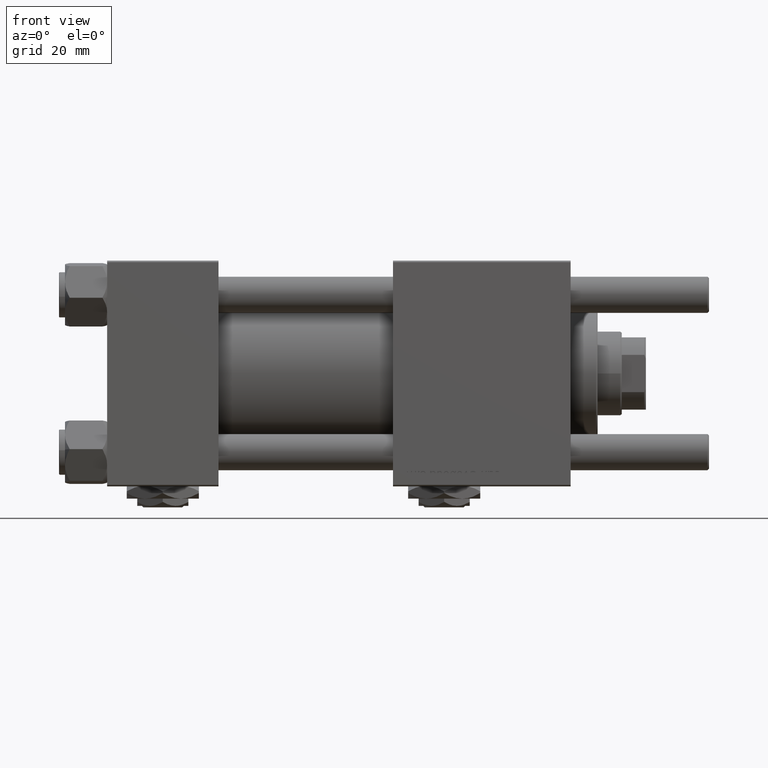
[diagram: clean part render]
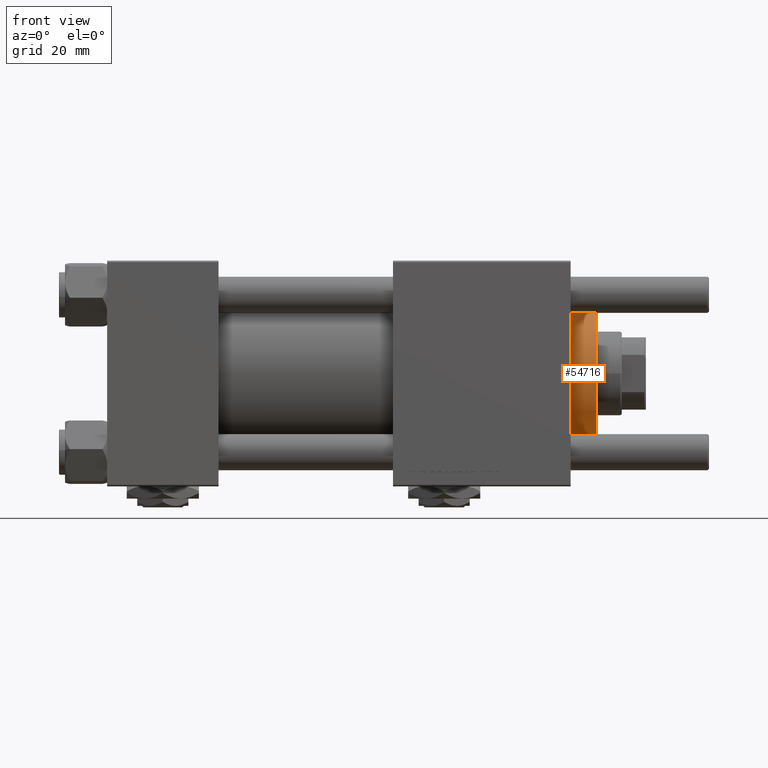
[diagram: same view with one face highlighted and labeled with its STEP entity id]
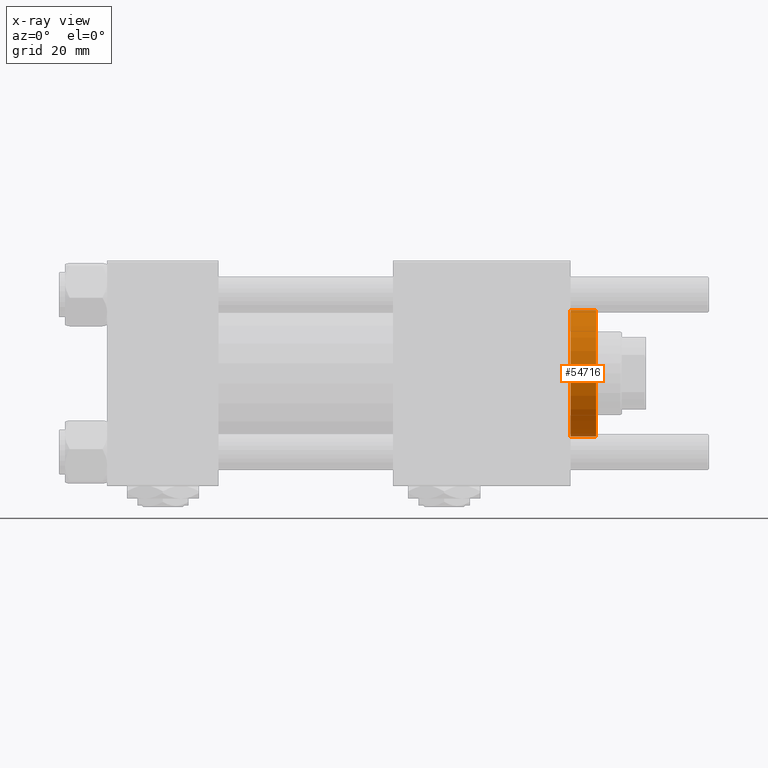
[diagram: x-ray of the same camera — body ghosted, the highlighted face saturated]
A machine part, front view. The second image highlights one B-rep face of the part: STEP entity #54716.
The next image is the same camera in x-ray: the body ghosted, the highlighted face saturated — about 2% of this face is hidden behind the body in this view.
In plain terms, the highlighted cylindrical surface (partial cylindrical patch) has radius 21 mm, axis along (-1, -0, 0).
Its self-contained STEP definition (entity closure, byte-faithful):
#752 = CARTESIAN_POINT ( 'NONE',  ( 0.000000000000000000, 0.000000000000000000, 28.69999999999999929 ) ) ;
#923 = ORIENTED_EDGE ( 'NONE', *, *, #51694, .T. ) ;
#1720 = EDGE_CURVE ( 'NONE', #11818, #10854, #43873, .T. ) ;
#1743 = DIRECTION ( 'NONE',  ( -0.000000000000000000, -0.000000000000000000, -1.000000000000000000 ) ) ;
#3553 = EDGE_LOOP ( 'NONE', ( #3613, #50491, #923, #40719 ) ) ;
#3613 = ORIENTED_EDGE ( 'NONE', *, *, #24667, .F. ) ;
#4584 = VECTOR ( 'NONE', #1743, 1000.000000000000000 ) ;
#4762 = CARTESIAN_POINT ( 'NONE',  ( 0.000000000000000000, 0.000000000000000000, 37.19999999999999574 ) ) ;
#7438 = DIRECTION ( 'NONE',  ( -0.000000000000000000, -0.000000000000000000, -1.000000000000000000 ) ) ;
#8427 = CARTESIAN_POINT ( 'NONE',  ( 21.00000000000000000, 2.571758278209441661E-15, 28.69999999999999929 ) ) ;
#10854 = VERTEX_POINT ( 'NONE', #8427 ) ;
#11818 = VERTEX_POINT ( 'NONE', #43141 ) ;
#14495 = AXIS2_PLACEMENT_3D ( 'NONE', #752, #32817, #27468 ) ;
#15616 = EDGE_CURVE ( 'NONE', #18017, #21276, #28030, .T. ) ;
#16622 = FACE_OUTER_BOUND ( 'NONE', #3553, .T. ) ;
#18017 = VERTEX_POINT ( 'NONE', #37291 ) ;
#19665 = AXIS2_PLACEMENT_3D ( 'NONE', #4762, #44045, #44332 ) ;
#20649 = CARTESIAN_POINT ( 'NONE',  ( -21.00000000000000000, 0.000000000000000000, 37.69999999999999574 ) ) ;
#21276 = VERTEX_POINT ( 'NONE', #52305 ) ;
#24667 = EDGE_CURVE ( 'NONE', #18017, #10854, #42435, .T. ) ;
#25537 = DIRECTION ( 'NONE',  ( -1.000000000000000000, 0.000000000000000000, 0.000000000000000000 ) ) ;
#27468 = DIRECTION ( 'NONE',  ( 1.000000000000000000, 0.000000000000000000, 0.000000000000000000 ) ) ;
#28030 = CIRCLE ( 'NONE', #19665, 21.00000000000000000 ) ;
#32817 = DIRECTION ( 'NONE',  ( 0.000000000000000000, 0.000000000000000000, 1.000000000000000000 ) ) ;
#33997 = VECTOR ( 'NONE', #38783, 1000.000000000000000 ) ;
#37092 = CARTESIAN_POINT ( 'NONE',  ( 21.00000000000000000, 2.571758278209441661E-15, 37.69999999999999574 ) ) ;
#37291 = CARTESIAN_POINT ( 'NONE',  ( 21.00000000000000000, 2.571758278209441661E-15, 37.19999999999999574 ) ) ;
#38783 = DIRECTION ( 'NONE',  ( -0.000000000000000000, -0.000000000000000000, -1.000000000000000000 ) ) ;
#39356 = LINE ( 'NONE', #20649, #33997 ) ;
#40719 = ORIENTED_EDGE ( 'NONE', *, *, #1720, .T. ) ;
#42435 = LINE ( 'NONE', #37092, #4584 ) ;
#43141 = CARTESIAN_POINT ( 'NONE',  ( -21.00000000000000000, 0.000000000000000000, 28.69999999999999929 ) ) ;
#43873 = CIRCLE ( 'NONE', #14495, 21.00000000000000000 ) ;
#44045 = DIRECTION ( 'NONE',  ( 0.000000000000000000, 0.000000000000000000, -1.000000000000000000 ) ) ;
#44332 = DIRECTION ( 'NONE',  ( 1.000000000000000000, 0.000000000000000000, 0.000000000000000000 ) ) ;
#46256 = AXIS2_PLACEMENT_3D ( 'NONE', #48106, #7438, #25537 ) ;
#48106 = CARTESIAN_POINT ( 'NONE',  ( 0.000000000000000000, 0.000000000000000000, 37.69999999999999574 ) ) ;
#50491 = ORIENTED_EDGE ( 'NONE', *, *, #15616, .T. ) ;
#51694 = EDGE_CURVE ( 'NONE', #21276, #11818, #39356, .T. ) ;
#51975 = CYLINDRICAL_SURFACE ( 'NONE', #46256, 21.00000000000000000 ) ;
#52305 = CARTESIAN_POINT ( 'NONE',  ( -21.00000000000000000, 0.000000000000000000, 37.19999999999999574 ) ) ;
#54716 = ADVANCED_FACE ( 'NONE', ( #16622 ), #51975, .T. ) ;